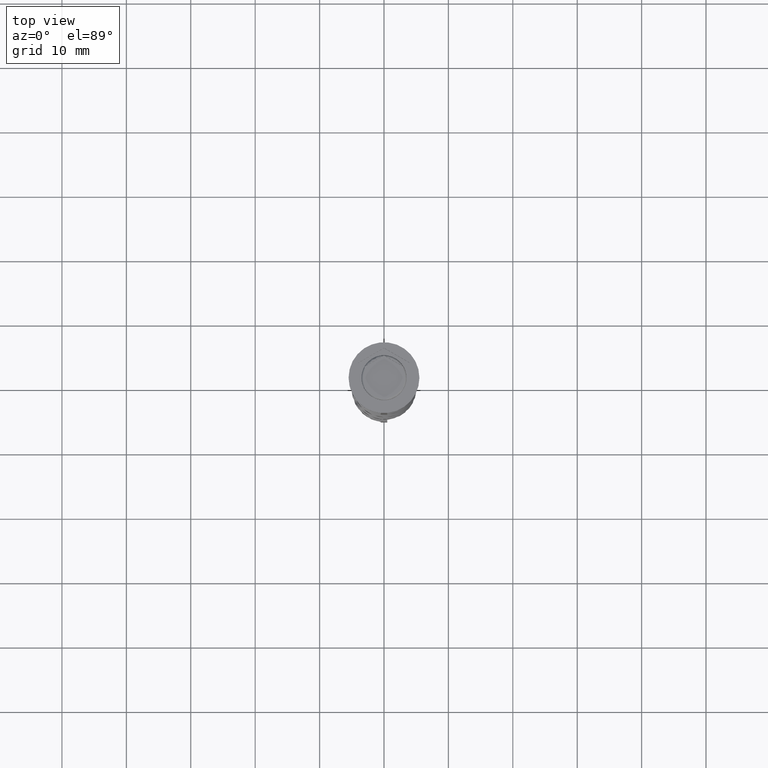
[diagram: clean part render]
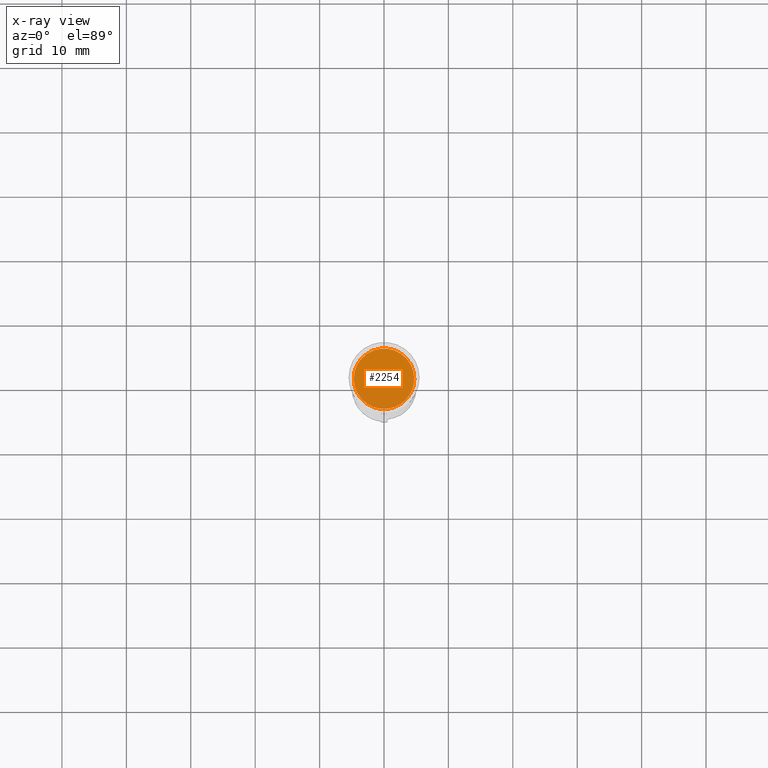
[diagram: x-ray — body ghosted, one internal face saturated and labeled with its STEP entity id]
A machine part, top view, then the same camera in x-ray: the body is ghosted and one INTERNAL B-rep face — a face not visible from any outside direction — is saturated and labeled: STEP entity #2254.
In plain terms, the highlighted planar face has unit normal (0, 0, -1).
Its self-contained STEP definition (entity closure, byte-faithful):
#127 = EDGE_LOOP ( 'NONE', ( #2041, #3379 ) ) ;
#366 = VERTEX_POINT ( 'NONE', #1336 ) ;
#497 = DIRECTION ( 'NONE',  ( -1.000000000000000000, 0.000000000000000000, -0.000000000000000000 ) ) ;
#711 = AXIS2_PLACEMENT_3D ( 'NONE', #1037, #2176, #497 ) ;
#789 = FACE_OUTER_BOUND ( 'NONE', #127, .T. ) ;
#999 = CIRCLE ( 'NONE', #2196, 4.700000000000001066 ) ;
#1037 = CARTESIAN_POINT ( 'NONE',  ( 0.000000000000000000, 0.000000000000000000, -10.50000000000000178 ) ) ;
#1116 = CARTESIAN_POINT ( 'NONE',  ( 0.000000000000000000, 0.000000000000000000, -10.50000000000000178 ) ) ;
#1324 = VERTEX_POINT ( 'NONE', #3490 ) ;
#1336 = CARTESIAN_POINT ( 'NONE',  ( -4.700000000000001066, 0.000000000000000000, -10.50000000000000178 ) ) ;
#1468 = EDGE_CURVE ( 'NONE', #1324, #366, #1904, .T. ) ;
#1502 = EDGE_CURVE ( 'NONE', #366, #1324, #999, .T. ) ;
#1702 = DIRECTION ( 'NONE',  ( -0.000000000000000000, -0.000000000000000000, 1.000000000000000000 ) ) ;
#1904 = CIRCLE ( 'NONE', #2600, 4.700000000000001066 ) ;
#2033 = DIRECTION ( 'NONE',  ( -0.000000000000000000, -0.000000000000000000, 1.000000000000000000 ) ) ;
#2041 = ORIENTED_EDGE ( 'NONE', *, *, #1502, .T. ) ;
#2176 = DIRECTION ( 'NONE',  ( 0.000000000000000000, 0.000000000000000000, -1.000000000000000000 ) ) ;
#2196 = AXIS2_PLACEMENT_3D ( 'NONE', #1116, #1702, #3449 ) ;
#2254 = ADVANCED_FACE ( 'NONE', ( #789 ), #2450, .F. ) ;
#2450 = PLANE ( 'NONE',  #711 ) ;
#2600 = AXIS2_PLACEMENT_3D ( 'NONE', #2850, #2033, #3670 ) ;
#2850 = CARTESIAN_POINT ( 'NONE',  ( 0.000000000000000000, 0.000000000000000000, -10.50000000000000178 ) ) ;
#3379 = ORIENTED_EDGE ( 'NONE', *, *, #1468, .T. ) ;
#3449 = DIRECTION ( 'NONE',  ( -1.000000000000000000, 0.000000000000000000, 0.000000000000000000 ) ) ;
#3490 = CARTESIAN_POINT ( 'NONE',  ( 4.700000000000001066, 5.939536975864663955E-16, -10.50000000000000178 ) ) ;
#3670 = DIRECTION ( 'NONE',  ( -1.000000000000000000, 0.000000000000000000, 0.000000000000000000 ) ) ;